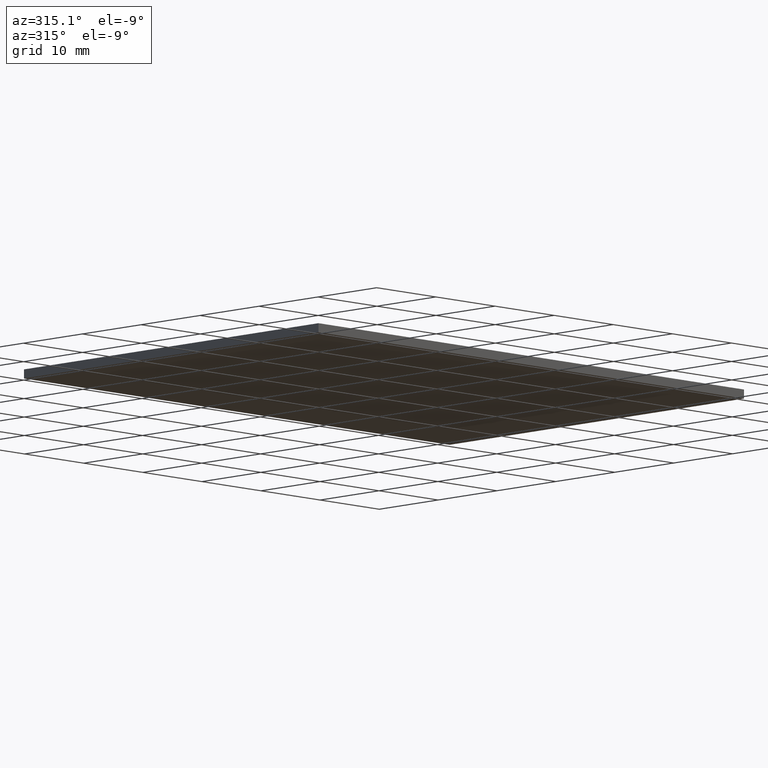
[diagram: clean part render]
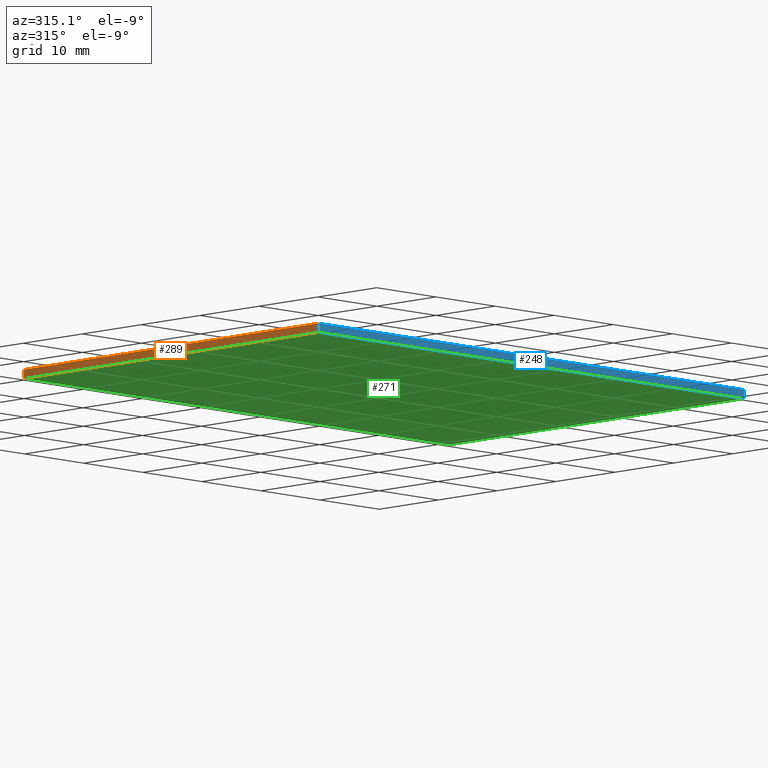
[diagram: same view with three faces highlighted in distinct colors, each labeled with its STEP entity id]
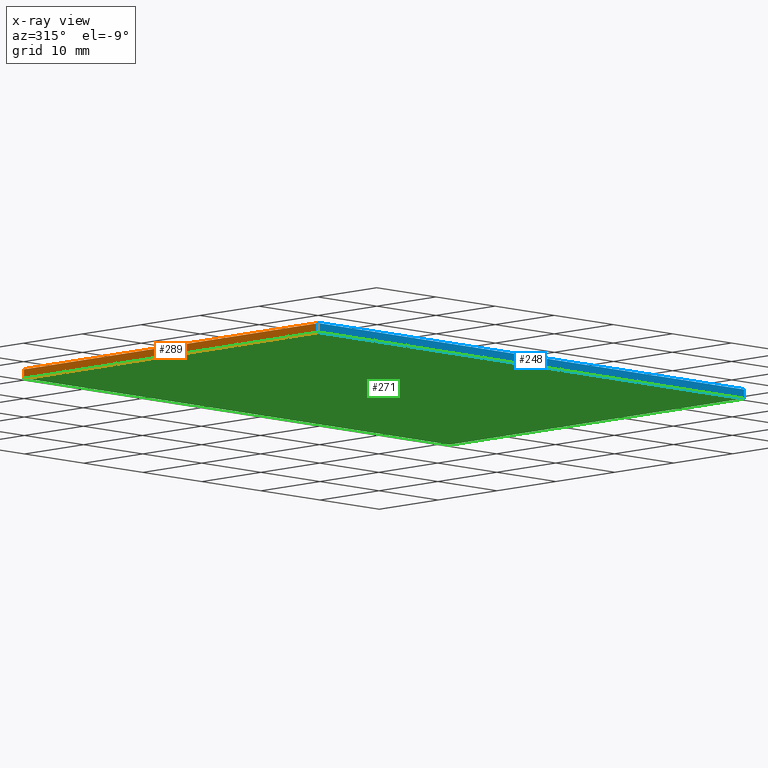
[diagram: x-ray of the same camera — body ghosted, the three highlighted faces saturated]
A machine part, auxiliary view with three faces highlighted in distinct colors.
The next image is the same camera in x-ray (body ghosted, the three faces saturated) — at least one of them is partly hidden behind the body in this view.
Their STEP definitions:

[orange] entity #289 — the highlighted planar face has unit normal (1, 0, -0).
#6 = EDGE_CURVE ( 'NONE', #36, #182, #33, .T. ) ;
#23 = CARTESIAN_POINT ( 'NONE',  ( -25.00000000000000000, 25.00000000000000000, 1.100000000000000100 ) ) ;
#24 = EDGE_CURVE ( 'NONE', #51, #182, #203, .T. ) ;
#33 = LINE ( 'NONE', #280, #81 ) ;
#36 = VERTEX_POINT ( 'NONE', #56 ) ;
#39 = PLANE ( 'NONE',  #123 ) ;
#43 = ORIENTED_EDGE ( 'NONE', *, *, #6, .F. ) ;
#48 = EDGE_CURVE ( 'NONE', #156, #51, #133, .T. ) ;
#51 = VERTEX_POINT ( 'NONE', #306 ) ;
#53 = VECTOR ( 'NONE', #286, 1000.000000000000000 ) ;
#56 = CARTESIAN_POINT ( 'NONE',  ( -24.99999999999999300, -25.00000000000000000, 1.100000000000000100 ) ) ;
#58 = CARTESIAN_POINT ( 'NONE',  ( -25.00000000000000000, 25.00000000000000000, 1.100000000000000100 ) ) ;
#70 = CARTESIAN_POINT ( 'NONE',  ( -25.00000000000000000, 25.00000000000000000, 1.100000000000000100 ) ) ;
#81 = VECTOR ( 'NONE', #155, 1000.000000000000000 ) ;
#107 = CARTESIAN_POINT ( 'NONE',  ( -25.00000000000000000, 25.00000000000000000, 1.100000000000000100 ) ) ;
#113 = DIRECTION ( 'NONE',  ( 1.000000000000000000, 1.387778780781445700E-016, -0.0000000000000000000 ) ) ;
#117 = VECTOR ( 'NONE', #183, 1000.000000000000000 ) ;
#118 = ORIENTED_EDGE ( 'NONE', *, *, #24, .T. ) ;
#123 = AXIS2_PLACEMENT_3D ( 'NONE', #70, #113, #241 ) ;
#133 = LINE ( 'NONE', #58, #172 ) ;
#155 = DIRECTION ( 'NONE',  ( -0.0000000000000000000, -0.0000000000000000000, -1.000000000000000000 ) ) ;
#156 = VERTEX_POINT ( 'NONE', #107 ) ;
#172 = VECTOR ( 'NONE', #304, 1000.000000000000000 ) ;
#174 = ORIENTED_EDGE ( 'NONE', *, *, #48, .T. ) ;
#182 = VERTEX_POINT ( 'NONE', #313 ) ;
#183 = DIRECTION ( 'NONE',  ( 1.387778780781445700E-016, -1.000000000000000000, 0.0000000000000000000 ) ) ;
#186 = FACE_OUTER_BOUND ( 'NONE', #201, .T. ) ;
#201 = EDGE_LOOP ( 'NONE', ( #118, #43, #216, #174 ) ) ;
#203 = LINE ( 'NONE', #276, #117 ) ;
#216 = ORIENTED_EDGE ( 'NONE', *, *, #265, .F. ) ;
#241 = DIRECTION ( 'NONE',  ( -1.387778780781445700E-016, 1.000000000000000000, 0.0000000000000000000 ) ) ;
#265 = EDGE_CURVE ( 'NONE', #156, #36, #294, .T. ) ;
#276 = CARTESIAN_POINT ( 'NONE',  ( -25.00000000000000000, 25.00000000000000000, 0.0000000000000000000 ) ) ;
#280 = CARTESIAN_POINT ( 'NONE',  ( -24.99999999999999300, -25.00000000000000000, 1.100000000000000100 ) ) ;
#286 = DIRECTION ( 'NONE',  ( 1.387778780781445700E-016, -1.000000000000000000, 0.0000000000000000000 ) ) ;
#289 = ADVANCED_FACE ( 'NONE', ( #186 ), #39, .F. ) ;
#294 = LINE ( 'NONE', #23, #53 ) ;
#304 = DIRECTION ( 'NONE',  ( -0.0000000000000000000, -0.0000000000000000000, -1.000000000000000000 ) ) ;
#306 = CARTESIAN_POINT ( 'NONE',  ( -25.00000000000000000, 25.00000000000000000, 0.0000000000000000000 ) ) ;
#313 = CARTESIAN_POINT ( 'NONE',  ( -24.99999999999999300, -25.00000000000000000, 0.0000000000000000000 ) ) ;

[blue] entity #248 — the highlighted planar face has unit normal (0, 1, 0).
#6 = EDGE_CURVE ( 'NONE', #36, #182, #33, .T. ) ;
#19 = ORIENTED_EDGE ( 'NONE', *, *, #6, .T. ) ;
#31 = AXIS2_PLACEMENT_3D ( 'NONE', #219, #161, #282 ) ;
#33 = LINE ( 'NONE', #280, #81 ) ;
#36 = VERTEX_POINT ( 'NONE', #56 ) ;
#41 = DIRECTION ( 'NONE',  ( -0.0000000000000000000, -0.0000000000000000000, -1.000000000000000000 ) ) ;
#42 = CARTESIAN_POINT ( 'NONE',  ( 46.99999999999998600, -25.00000000000000000, 1.100000000000000100 ) ) ;
#56 = CARTESIAN_POINT ( 'NONE',  ( -24.99999999999999300, -25.00000000000000000, 1.100000000000000100 ) ) ;
#60 = LINE ( 'NONE', #42, #247 ) ;
#63 = DIRECTION ( 'NONE',  ( 1.000000000000000000, 0.0000000000000000000, 0.0000000000000000000 ) ) ;
#73 = LINE ( 'NONE', #215, #108 ) ;
#81 = VECTOR ( 'NONE', #155, 1000.000000000000000 ) ;
#108 = VECTOR ( 'NONE', #63, 1000.000000000000000 ) ;
#109 = VERTEX_POINT ( 'NONE', #234 ) ;
#110 = CARTESIAN_POINT ( 'NONE',  ( -24.99999999999999300, -25.00000000000000000, 1.100000000000000100 ) ) ;
#112 = DIRECTION ( 'NONE',  ( 1.000000000000000000, 0.0000000000000000000, 0.0000000000000000000 ) ) ;
#136 = ORIENTED_EDGE ( 'NONE', *, *, #170, .F. ) ;
#139 = FACE_OUTER_BOUND ( 'NONE', #299, .T. ) ;
#147 = LINE ( 'NONE', #110, #236 ) ;
#149 = EDGE_CURVE ( 'NONE', #182, #290, #73, .T. ) ;
#155 = DIRECTION ( 'NONE',  ( -0.0000000000000000000, -0.0000000000000000000, -1.000000000000000000 ) ) ;
#161 = DIRECTION ( 'NONE',  ( 0.0000000000000000000, 1.000000000000000000, 0.0000000000000000000 ) ) ;
#164 = PLANE ( 'NONE',  #31 ) ;
#170 = EDGE_CURVE ( 'NONE', #36, #109, #147, .T. ) ;
#181 = EDGE_CURVE ( 'NONE', #109, #290, #60, .T. ) ;
#182 = VERTEX_POINT ( 'NONE', #313 ) ;
#215 = CARTESIAN_POINT ( 'NONE',  ( -24.99999999999999300, -25.00000000000000000, 0.0000000000000000000 ) ) ;
#219 = CARTESIAN_POINT ( 'NONE',  ( -24.99999999999999300, -25.00000000000000000, 1.100000000000000100 ) ) ;
#234 = CARTESIAN_POINT ( 'NONE',  ( 46.99999999999998600, -25.00000000000000000, 1.100000000000000100 ) ) ;
#236 = VECTOR ( 'NONE', #112, 1000.000000000000000 ) ;
#247 = VECTOR ( 'NONE', #41, 1000.000000000000000 ) ;
#248 = ADVANCED_FACE ( 'NONE', ( #139 ), #164, .F. ) ;
#256 = ORIENTED_EDGE ( 'NONE', *, *, #181, .F. ) ;
#264 = CARTESIAN_POINT ( 'NONE',  ( 46.99999999999998600, -25.00000000000000000, 0.0000000000000000000 ) ) ;
#280 = CARTESIAN_POINT ( 'NONE',  ( -24.99999999999999300, -25.00000000000000000, 1.100000000000000100 ) ) ;
#282 = DIRECTION ( 'NONE',  ( 0.0000000000000000000, -0.0000000000000000000, 1.000000000000000000 ) ) ;
#290 = VERTEX_POINT ( 'NONE', #264 ) ;
#299 = EDGE_LOOP ( 'NONE', ( #303, #256, #136, #19 ) ) ;
#303 = ORIENTED_EDGE ( 'NONE', *, *, #149, .T. ) ;
#313 = CARTESIAN_POINT ( 'NONE',  ( -24.99999999999999300, -25.00000000000000000, 0.0000000000000000000 ) ) ;

[green] entity #271 — the highlighted planar face has unit normal (-0, 0, 1).
#11 = EDGE_CURVE ( 'NONE', #284, #51, #197, .T. ) ;
#14 = CARTESIAN_POINT ( 'NONE',  ( -25.00000000000000000, 25.00000000000000000, 0.0000000000000000000 ) ) ;
#20 = DIRECTION ( 'NONE',  ( 1.387778780781445700E-016, 1.000000000000000000, -0.0000000000000000000 ) ) ;
#24 = EDGE_CURVE ( 'NONE', #51, #182, #203, .T. ) ;
#26 = FACE_OUTER_BOUND ( 'NONE', #253, .T. ) ;
#51 = VERTEX_POINT ( 'NONE', #306 ) ;
#63 = DIRECTION ( 'NONE',  ( 1.000000000000000000, 0.0000000000000000000, 0.0000000000000000000 ) ) ;
#73 = LINE ( 'NONE', #215, #108 ) ;
#87 = LINE ( 'NONE', #288, #125 ) ;
#94 = CARTESIAN_POINT ( 'NONE',  ( 46.99999999999999300, 25.00000000000000000, 0.0000000000000000000 ) ) ;
#96 = PLANE ( 'NONE',  #128 ) ;
#108 = VECTOR ( 'NONE', #63, 1000.000000000000000 ) ;
#117 = VECTOR ( 'NONE', #183, 1000.000000000000000 ) ;
#125 = VECTOR ( 'NONE', #20, 1000.000000000000000 ) ;
#128 = AXIS2_PLACEMENT_3D ( 'NONE', #263, #218, #135 ) ;
#135 = DIRECTION ( 'NONE',  ( 1.000000000000000000, 0.0000000000000000000, 0.0000000000000000000 ) ) ;
#149 = EDGE_CURVE ( 'NONE', #182, #290, #73, .T. ) ;
#182 = VERTEX_POINT ( 'NONE', #313 ) ;
#183 = DIRECTION ( 'NONE',  ( 1.387778780781445700E-016, -1.000000000000000000, 0.0000000000000000000 ) ) ;
#197 = LINE ( 'NONE', #14, #229 ) ;
#203 = LINE ( 'NONE', #276, #117 ) ;
#212 = DIRECTION ( 'NONE',  ( -1.000000000000000000, -0.0000000000000000000, -0.0000000000000000000 ) ) ;
#215 = CARTESIAN_POINT ( 'NONE',  ( -24.99999999999999300, -25.00000000000000000, 0.0000000000000000000 ) ) ;
#218 = DIRECTION ( 'NONE',  ( -0.0000000000000000000, 0.0000000000000000000, 1.000000000000000000 ) ) ;
#227 = ORIENTED_EDGE ( 'NONE', *, *, #11, .F. ) ;
#229 = VECTOR ( 'NONE', #212, 1000.000000000000000 ) ;
#249 = ORIENTED_EDGE ( 'NONE', *, *, #24, .F. ) ;
#253 = EDGE_LOOP ( 'NONE', ( #249, #227, #315, #297 ) ) ;
#263 = CARTESIAN_POINT ( 'NONE',  ( 0.0000000000000000000, 0.0000000000000000000, 0.0000000000000000000 ) ) ;
#264 = CARTESIAN_POINT ( 'NONE',  ( 46.99999999999998600, -25.00000000000000000, 0.0000000000000000000 ) ) ;
#271 = ADVANCED_FACE ( 'NONE', ( #26 ), #96, .F. ) ;
#276 = CARTESIAN_POINT ( 'NONE',  ( -25.00000000000000000, 25.00000000000000000, 0.0000000000000000000 ) ) ;
#284 = VERTEX_POINT ( 'NONE', #94 ) ;
#288 = CARTESIAN_POINT ( 'NONE',  ( 46.99999999999999300, 25.00000000000000000, 0.0000000000000000000 ) ) ;
#290 = VERTEX_POINT ( 'NONE', #264 ) ;
#297 = ORIENTED_EDGE ( 'NONE', *, *, #149, .F. ) ;
#307 = EDGE_CURVE ( 'NONE', #290, #284, #87, .T. ) ;
#306 = CARTESIAN_POINT ( 'NONE',  ( -25.00000000000000000, 25.00000000000000000, 0.0000000000000000000 ) ) ;
#313 = CARTESIAN_POINT ( 'NONE',  ( -24.99999999999999300, -25.00000000000000000, 0.0000000000000000000 ) ) ;
#315 = ORIENTED_EDGE ( 'NONE', *, *, #307, .F. ) ;